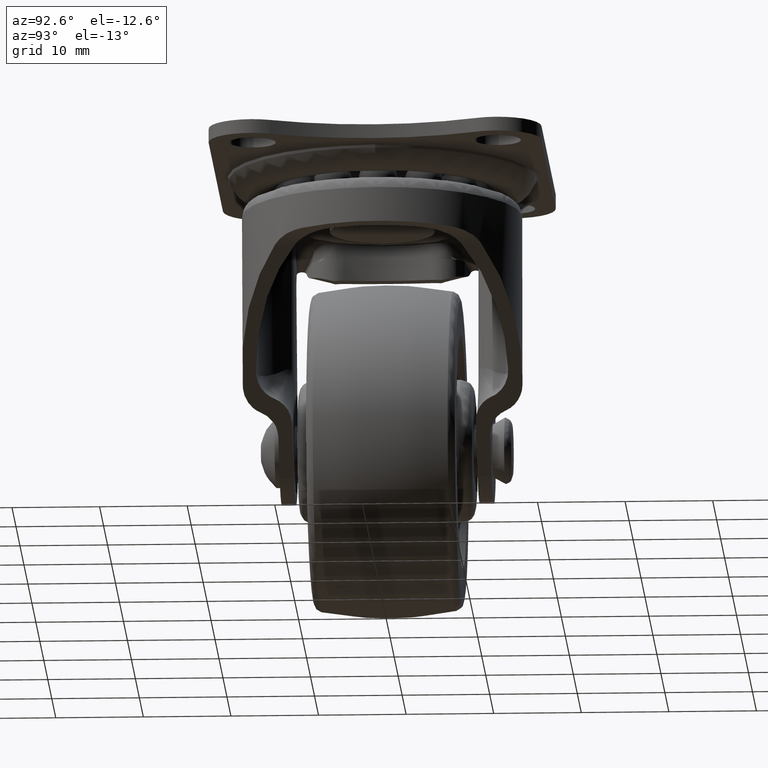
[diagram: clean part render]
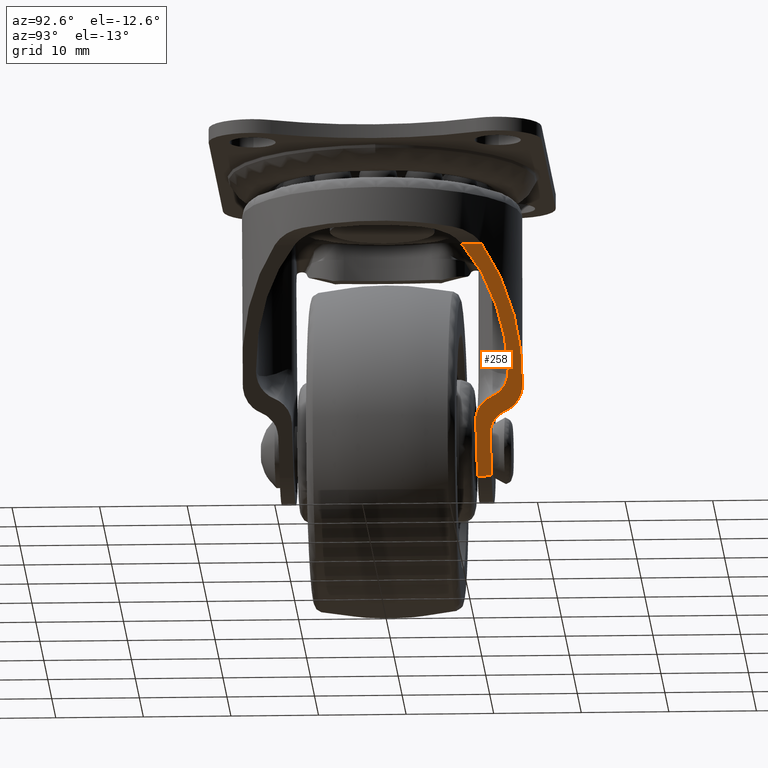
[diagram: same view with one face highlighted and labeled with its STEP entity id]
A machine part, auxiliary view. The second image highlights one B-rep face of the part: STEP entity #258.
In plain terms, the highlighted planar face has unit normal (-0.7617, 0, 0.648).
Its self-contained STEP definition (entity closure, byte-faithful):
#258=ADVANCED_FACE('',(#827),#826,.F.);
#826=PLANE('',#3543);
#827=FACE_OUTER_BOUND('',#3544,.T.);
#3540=CARTESIAN_POINT('',(-1.05741111000E+01,8.82198329524E+00,-3.71729353000E+01));
#3541=DIRECTION('',(-7.61650027285E-01,0.00000000000E+00,6.47988607875E-01));
#3542=DIRECTION('',(6.47988607875E-01,0.00000000000E+00,7.61650027285E-01));
#3543=AXIS2_PLACEMENT_3D('',#3540,#3541,#3542);
#3544=EDGE_LOOP('',(#5873,#5874,#5875,#5876,#5877,#5878,#5879,#5880,#5881,#5882));
#5873=ORIENTED_EDGE('',*,*,#7018,.T.);
#5874=ORIENTED_EDGE('',*,*,#7019,.T.);
#5875=ORIENTED_EDGE('',*,*,#7020,.T.);
#5876=ORIENTED_EDGE('',*,*,#7021,.F.);
#5877=ORIENTED_EDGE('',*,*,#6870,.F.);
#5878=ORIENTED_EDGE('',*,*,#7022,.T.);
#5879=ORIENTED_EDGE('',*,*,#6876,.T.);
#5880=ORIENTED_EDGE('',*,*,#7023,.F.);
#5881=ORIENTED_EDGE('',*,*,#7024,.T.);
#5882=ORIENTED_EDGE('',*,*,#7013,.T.);
#6870=EDGE_CURVE('',#7608,#7615,#7616,.T.);
#6876=EDGE_CURVE('',#7656,#7657,#7658,.T.);
#7013=EDGE_CURVE('',#8581,#8574,#8582,.T.);
#7018=EDGE_CURVE('',#8574,#8614,#8615,.T.);
#7019=EDGE_CURVE('',#8614,#8621,#8622,.T.);
#7020=EDGE_CURVE('',#8621,#8628,#8629,.T.);
#7021=EDGE_CURVE('',#7615,#8628,#8635,.T.);
#7022=EDGE_CURVE('',#7608,#7656,#8641,.T.);
#7023=EDGE_CURVE('',#8647,#7657,#8648,.T.);
#7024=EDGE_CURVE('',#8647,#8581,#8654,.T.);
#7608=VERTEX_POINT('',#11538);
#7615=VERTEX_POINT('',#11555);
#7616=LINE('',#11556,#11557);
#7656=VERTEX_POINT('',#11582);
#7657=VERTEX_POINT('',#11583);
#7658=(BOUNDED_CURVE() B_SPLINE_CURVE(3,(#11584,#11585,#11586,#11587,#11588,#11589,#11590,#11591,#11592,#11593,#11594,#11595,#11596,#11597,#11598,#11599),.UNSPECIFIED.,.F.,.F.) B_SPLINE_CURVE_WITH_KNOTS((4,2,2,2,2,2,2,4),(1.26736317592E-03,1.77058834789E-03,2.27381351986E-03,2.77703869183E-03,3.28026386380E-03,3.78348903576E-03,4.28671420773E-03,5.29316455167E-03),.UNSPECIFIED.) CURVE() GEOMETRIC_REPRESENTATION_ITEM() RATIONAL_B_SPLINE_CURVE((1.00000000000E+00,1.00000000000E+00,1.00000000000E+00,1.00000000000E+00,1.00000000000E+00,1.00000000000E+00,1.00000000000E+00,1.00000000000E+00,1.00000000000E+00,1.00000000000E+00,1.00000000000E+00,1.00000000000E+00,1.00000000000E+00,1.00000000000E+00,1.00000000000E+00,1.00000000000E+00)) REPRESENTATION_ITEM('') );
#8574=VERTEX_POINT('',#12467);
#8581=VERTEX_POINT('',#12482);
#8582=(BOUNDED_CURVE() B_SPLINE_CURVE(2,(#12483,#12484,#12485),.UNSPECIFIED.,.F.,.F.) B_SPLINE_CURVE_WITH_KNOTS((3,3),(7.21682564350E-01,1.55186062729E+00),.UNSPECIFIED.) CURVE() GEOMETRIC_REPRESENTATION_ITEM() RATIONAL_B_SPLINE_CURVE((1.00000000000E+00,9.15080420275E-01,1.00000000000E+00)) REPRESENTATION_ITEM('') );
#8614=VERTEX_POINT('',#12516);
#8615=(BOUNDED_CURVE() B_SPLINE_CURVE(3,(#12517,#12518,#12519,#12520,#12521,#12522,#12523,#12524,#12525,#12526,#12527,#12528,#12529,#12530),.UNSPECIFIED.,.F.,.F.) B_SPLINE_CURVE_WITH_KNOTS((4,2,2,2,2,2,4),(0.00000000000E+00,1.06368332301E-03,2.12736664603E-03,2.65920830754E-03,3.19104996904E-03,3.72289163055E-03,4.25473329206E-03),.UNSPECIFIED.) CURVE() GEOMETRIC_REPRESENTATION_ITEM() RATIONAL_B_SPLINE_CURVE((1.00000000000E+00,1.00000000000E+00,1.00000000000E+00,1.00000000000E+00,1.00000000000E+00,1.00000000000E+00,1.00000000000E+00,1.00000000000E+00,1.00000000000E+00,1.00000000000E+00,1.00000000000E+00,1.00000000000E+00,1.00000000000E+00,1.00000000000E+00)) REPRESENTATION_ITEM('') );
#8621=VERTEX_POINT('',#12531);
#8622=(BOUNDED_CURVE() B_SPLINE_CURVE(3,(#12532,#12533,#12534,#12535,#12536,#12537,#12538,#12539),.UNSPECIFIED.,.F.,.F.) B_SPLINE_CURVE_WITH_KNOTS((4,2,2,4),(1.67299667573E-16,9.59351987251E-04,1.91870397450E-03,3.83740794901E-03),.UNSPECIFIED.) CURVE() GEOMETRIC_REPRESENTATION_ITEM() RATIONAL_B_SPLINE_CURVE((1.00000000000E+00,1.00000000000E+00,1.00000000000E+00,1.00000000000E+00,1.00000000000E+00,1.00000000000E+00,1.00000000000E+00,1.00000000000E+00)) REPRESENTATION_ITEM('') );
#8628=VERTEX_POINT('',#12540);
#8629=LINE('',#12541,#12542);
#8635=LINE('',#12544,#12545);
#8641=(BOUNDED_CURVE() B_SPLINE_CURVE(3,(#12547,#12548,#12549,#12550,#12551,#12552,#12553,#12554,#12555,#12556,#12557,#12558,#12559,#12560),.UNSPECIFIED.,.F.,.F.) B_SPLINE_CURVE_WITH_KNOTS((4,2,2,2,2,2,4),(5.54365622202E-17,9.20423855775E-04,1.38063578366E-03,1.84084771155E-03,2.76127156732E-03,3.22148349521E-03,3.68169542310E-03),.UNSPECIFIED.) CURVE() GEOMETRIC_REPRESENTATION_ITEM() RATIONAL_B_SPLINE_CURVE((1.00000000000E+00,1.00000000000E+00,1.00000000000E+00,1.00000000000E+00,1.00000000000E+00,1.00000000000E+00,1.00000000000E+00,1.00000000000E+00,1.00000000000E+00,1.00000000000E+00,1.00000000000E+00,1.00000000000E+00,1.00000000000E+00,1.00000000000E+00)) REPRESENTATION_ITEM('') );
#8647=VERTEX_POINT('',#12561);
#8648=(BOUNDED_CURVE() B_SPLINE_CURVE(2,(#12562,#12563,#12564),.UNSPECIFIED.,.F.,.F.) B_SPLINE_CURVE_WITH_KNOTS((3,3),(8.28983270789E-01,1.63847641321E+00),.UNSPECIFIED.) CURVE() GEOMETRIC_REPRESENTATION_ITEM() RATIONAL_B_SPLINE_CURVE((1.00000000000E+00,9.19202223347E-01,1.00000000000E+00)) REPRESENTATION_ITEM('') );
#8654=LINE('',#12565,#12566);
#11538=CARTESIAN_POINT('',(-5.14043079300E+00,1.20999980000E+01,-3.07861521007E+01));
#11555=CARTESIAN_POINT('',(-8.63010000000E+00,1.20999980000E+01,-3.48879320000E+01));
#11556=CARTESIAN_POINT('',(-5.14043079300E+00,1.20999980000E+01,-3.07861521007E+01));
#11557=VECTOR('',#11558,5.38538666358E+00);
#11558=DIRECTION('',(-6.47988607875E-01,0.00000000000E+00,-7.61650027285E-01));
#11582=CARTESIAN_POINT('',(-3.19886291528E+00,1.39290269374E+01,-2.85040205801E+01));
#11583=CARTESIAN_POINT('',(-1.08205486531E+00,1.59633692330E+01,-2.60159106204E+01));
#11584=CARTESIAN_POINT('',(-3.19886291528E+00,1.39290269374E+01,-2.85040205801E+01));
#11585=CARTESIAN_POINT('',(-3.15248738447E+00,1.40811956282E+01,-2.84495104794E+01));
#11586=CARTESIAN_POINT('',(-3.09832295725E+00,1.42270096543E+01,-2.83858452591E+01));
#11587=CARTESIAN_POINT('',(-2.97500557263E+00,1.45064091340E+01,-2.82408972025E+01));
#11588=CARTESIAN_POINT('',(-2.90603537492E+00,1.46391913757E+01,-2.81598291832E+01));
#11589=CARTESIAN_POINT('',(-2.75784023815E+00,1.48853283635E+01,-2.79856396549E+01));
#11590=CARTESIAN_POINT('',(-2.67816935882E+00,1.49997200915E+01,-2.78919939848E+01));
#11591=CARTESIAN_POINT('',(-2.50806112383E+00,1.52117418424E+01,-2.76920476582E+01));
#11592=CARTESIAN_POINT('',(-2.41752132197E+00,1.53092167718E+01,-2.75856265858E+01));
#11593=CARTESIAN_POINT('',(-2.23097932265E+00,1.54827100262E+01,-2.73663639056E+01));
#11594=CARTESIAN_POINT('',(-2.13438109892E+00,1.55595252773E+01,-2.72528217247E+01));
#11595=CARTESIAN_POINT('',(-1.93478438939E+00,1.56940517432E+01,-2.70182144532E+01));
#11596=CARTESIAN_POINT('',(-1.83112177572E+00,1.57520134320E+01,-2.68963687424E+01));
#11597=CARTESIAN_POINT('',(-1.51633544267E+00,1.58943940120E+01,-2.65263668377E+01));
#11598=CARTESIAN_POINT('',(-1.30155821347E+00,1.59484905027E+01,-2.62739162846E+01));
#11599=CARTESIAN_POINT('',(-1.08205486531E+00,1.59633692330E+01,-2.60159106204E+01));
#12467=CARTESIAN_POINT('',(2.72657778105E-01,1.43974184400E+01,-2.44235725619E+01));
#12482=CARTESIAN_POINT('',(1.08100110000E+01,9.51334127317E+00,-1.20378990000E+01));
#12483=CARTESIAN_POINT('',(1.08100110000E+01,9.51334127317E+00,-1.20378990000E+01));
#12484=CARTESIAN_POINT('',(6.61752868164E+00,1.42772595094E+01,-1.69657700048E+01));
#12485=CARTESIAN_POINT('',(2.72657778105E-01,1.43974184400E+01,-2.44235725619E+01));
#12516=CARTESIAN_POINT('',(-2.01014249137E+00,1.23976880981E+01,-2.71067908568E+01));
#12517=CARTESIAN_POINT('',(2.72657778105E-01,1.43974184400E+01,-2.44235725619E+01));
#12518=CARTESIAN_POINT('',(3.95358406786E-02,1.44018332946E+01,-2.46975856045E+01));
#12519=CARTESIAN_POINT('',(-1.89373261791E-01,1.43655521072E+01,-2.49666468534E+01));
#12520=CARTESIAN_POINT('',(-6.38182191017E-01,1.42059600083E+01,-2.54941797900E+01));
#12521=CARTESIAN_POINT('',(-8.59784686286E-01,1.40799399259E+01,-2.57546528053E+01));
#12522=CARTESIAN_POINT('',(-1.16268070933E+00,1.38284694779E+01,-2.61106787623E+01));
#12523=CARTESIAN_POINT('',(-1.25958685417E+00,1.37340038881E+01,-2.62245828756E+01));
#12524=CARTESIAN_POINT('',(-1.44463525058E+00,1.35220961666E+01,-2.64420899652E+01));
#12525=CARTESIAN_POINT('',(-1.53356852307E+00,1.34033102535E+01,-2.65466227125E+01));
#12526=CARTESIAN_POINT('',(-1.69624970318E+00,1.31475276572E+01,-2.67378392305E+01));
#12527=CARTESIAN_POINT('',(-1.77025855785E+00,1.30106610330E+01,-2.68248297200E+01));
#12528=CARTESIAN_POINT('',(-1.90276789558E+00,1.27179428263E+01,-2.69805820580E+01));
#12529=CARTESIAN_POINT('',(-1.96173986001E+00,1.25602466986E+01,-2.70498980888E+01));
#12530=CARTESIAN_POINT('',(-2.01014249137E+00,1.23976880981E+01,-2.71067908568E+01));
#12531=CARTESIAN_POINT('',(-4.04022940849E+00,1.04999980000E+01,-2.94929682325E+01));
#12532=CARTESIAN_POINT('',(-2.01014249137E+00,1.23976880981E+01,-2.71067908568E+01));
#12533=CARTESIAN_POINT('',(-2.09806253360E+00,1.21024116098E+01,-2.72101326467E+01));
#12534=CARTESIAN_POINT('',(-2.21567112253E+00,1.18391173863E+01,-2.73483705476E+01));
#12535=CARTESIAN_POINT('',(-2.50174420494E+00,1.13673139385E+01,-2.76846227106E+01));
#12536=CARTESIAN_POINT('',(-2.66605319668E+00,1.11669172533E+01,-2.78777525690E+01));
#12537=CARTESIAN_POINT('',(-3.20543510886E+00,1.06751558822E+01,-2.85117455792E+01));
#12538=CARTESIAN_POINT('',(-3.62010666166E+00,1.04999980000E+01,-2.89991532214E+01));
#12539=CARTESIAN_POINT('',(-4.04022940849E+00,1.04999980000E+01,-2.94929682325E+01));
#12540=CARTESIAN_POINT('',(-8.63010000000E+00,1.04999980000E+01,-3.48879320000E+01));
#12541=CARTESIAN_POINT('',(-4.04022940849E+00,1.04999980000E+01,-2.94929682325E+01));
#12542=VECTOR('',#12543,7.08325815566E+00);
#12543=DIRECTION('',(-6.47988607875E-01,0.00000000000E+00,-7.61650027285E-01));
#12544=CARTESIAN_POINT('',(-8.63010000000E+00,1.20999980000E+01,-3.48879320000E+01));
#12545=VECTOR('',#12546,1.60000000000E+00);
#12546=DIRECTION('',(0.00000000000E+00,-1.00000000000E+00,0.00000000000E+00));
#12547=CARTESIAN_POINT('',(-5.14043079300E+00,1.20999980000E+01,-3.07861521007E+01));
#12548=CARTESIAN_POINT('',(-4.93875492843E+00,1.20999980000E+01,-3.05491009769E+01));
#12549=CARTESIAN_POINT('',(-4.74169341571E+00,1.21417723616E+01,-3.03174735922E+01));
#12550=CARTESIAN_POINT('',(-4.45274729873E+00,1.22646024326E+01,-2.99778444456E+01));
#12551=CARTESIAN_POINT('',(-4.35702339705E+00,1.23162051389E+01,-2.98653299486E+01));
#12552=CARTESIAN_POINT('',(-4.17328686667E+00,1.24373638986E+01,-2.96493648349E+01));
#12553=CARTESIAN_POINT('',(-4.08469675022E+00,1.25070403444E+01,-2.95452354354E+01));
#12554=CARTESIAN_POINT('',(-3.82879060614E+00,1.27434434621E+01,-2.92444416880E+01));
#12555=CARTESIAN_POINT('',(-3.66956041154E+00,1.29407915546E+01,-2.90572814809E+01));
#12556=CARTESIAN_POINT('',(-3.46694727528E+00,1.32779078169E+01,-2.88191286818E+01));
#12557=CARTESIAN_POINT('',(-3.40488622303E+00,1.33975357773E+01,-2.87461817170E+01));
#12558=CARTESIAN_POINT('',(-3.29240878466E+00,1.36522193893E+01,-2.86139750039E+01));
#12559=CARTESIAN_POINT('',(-3.24185039090E+00,1.37879752283E+01,-2.85545483388E+01));
#12560=CARTESIAN_POINT('',(-3.19886291528E+00,1.39290269374E+01,-2.85040205801E+01));
#12561=CARTESIAN_POINT('',(1.08100110000E+01,1.17959171826E+01,-1.20378990000E+01));
#12562=CARTESIAN_POINT('',(1.08100110000E+01,1.17959171826E+01,-1.20378990000E+01));
#12563=CARTESIAN_POINT('',(5.75664536309E+00,1.64269210526E+01,-1.79776578607E+01));
#12564=CARTESIAN_POINT('',(-1.08205486531E+00,1.59633692330E+01,-2.60159106204E+01));
#12565=CARTESIAN_POINT('',(1.08100110000E+01,1.17959171826E+01,-1.20378990000E+01));
#12566=VECTOR('',#12567,2.28257590947E+00);
#12567=DIRECTION('',(0.00000000000E+00,-1.00000000000E+00,0.00000000000E+00));